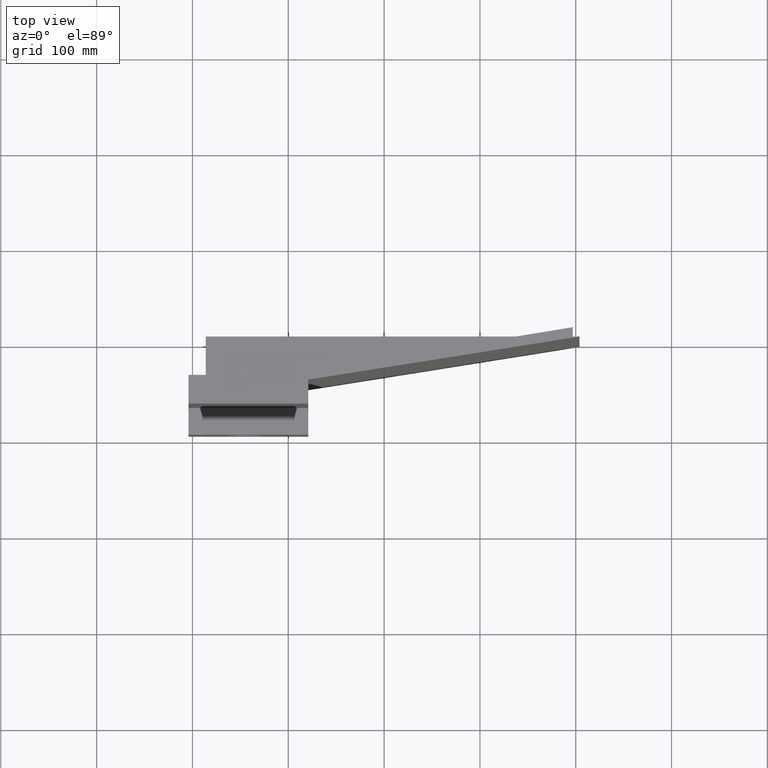
[diagram: clean part render]
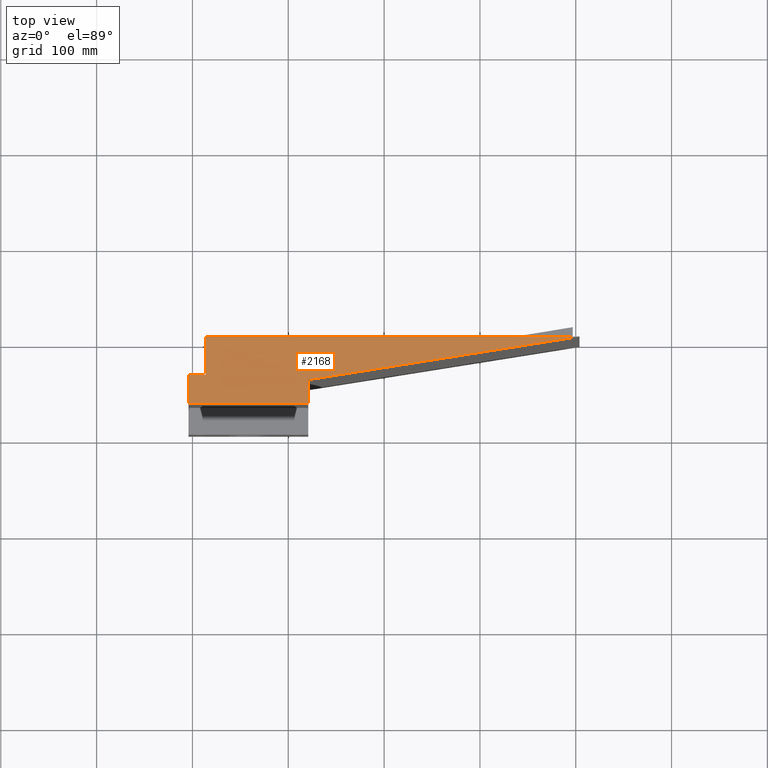
[diagram: same view with one face highlighted and labeled with its STEP entity id]
A machine part, top view. The second image highlights one B-rep face of the part: STEP entity #2168.
In plain terms, the highlighted planar face has unit normal (0, 0, -1).
Its self-contained STEP definition (entity closure, byte-faithful):
#55 = LINE ( 'NONE', #2606, #93 ) ;
#84 = CARTESIAN_POINT ( 'NONE',  ( 20.88361753920343500, 0.0000000000000000000, 318.0000000000000000 ) ) ;
#93 = VECTOR ( 'NONE', #2626, 1000.000000000000000 ) ;
#160 = ORIENTED_EDGE ( 'NONE', *, *, #1872, .T. ) ;
#176 = PLANE ( 'NONE',  #2049 ) ;
#248 = EDGE_CURVE ( 'NONE', #2057, #2836, #2489, .T. ) ;
#331 = VERTEX_POINT ( 'NONE', #1990 ) ;
#349 = EDGE_CURVE ( 'NONE', #2400, #331, #2109, .T. ) ;
#573 = VECTOR ( 'NONE', #2435, 1000.000000000000000 ) ;
#605 = LINE ( 'NONE', #2419, #573 ) ;
#614 = ORIENTED_EDGE ( 'NONE', *, *, #1019, .T. ) ;
#619 = VECTOR ( 'NONE', #2942, 1000.000000000000000 ) ;
#622 = CARTESIAN_POINT ( 'NONE',  ( 20.88361753920343500, -45.00000000000002100, 318.0000000000000000 ) ) ;
#658 = VECTOR ( 'NONE', #2006, 1000.000000000000000 ) ;
#863 = CARTESIAN_POINT ( 'NONE',  ( -104.1163824607965700, -40.00000000000003600, 318.0000000000000000 ) ) ;
#895 = ORIENTED_EDGE ( 'NONE', *, *, #349, .T. ) ;
#898 = CARTESIAN_POINT ( 'NONE',  ( -104.1163824607965700, -40.00000000000003600, 318.0000000000000000 ) ) ;
#1019 = EDGE_CURVE ( 'NONE', #1593, #1308, #1720, .T. ) ;
#1159 = CARTESIAN_POINT ( 'NONE',  ( 20.88361753920343500, -70.00000000000001400, 318.0000000000000000 ) ) ;
#1308 = VERTEX_POINT ( 'NONE', #622 ) ;
#1314 = ORIENTED_EDGE ( 'NONE', *, *, #2559, .T. ) ;
#1402 = DIRECTION ( 'NONE',  ( 0.9875926096460859700, 0.1570376941133352600, -0.0000000000000000000 ) ) ;
#1415 = CARTESIAN_POINT ( 'NONE',  ( 303.8836175392034400, 0.0000000000000000000, 318.0000000000000000 ) ) ;
#1593 = VERTEX_POINT ( 'NONE', #1159 ) ;
#1600 = ORIENTED_EDGE ( 'NONE', *, *, #2449, .T. ) ;
#1720 = LINE ( 'NONE', #2743, #619 ) ;
#1758 = CARTESIAN_POINT ( 'NONE',  ( -73.11638246079655800, -70.00000000000001400, 318.0000000000000000 ) ) ;
#1762 = DIRECTION ( 'NONE',  ( 1.000000000000000000, 4.476705744456276300E-016, -0.0000000000000000000 ) ) ;
#1844 = VECTOR ( 'NONE', #1402, 1000.000000000000100 ) ;
#1872 = EDGE_CURVE ( 'NONE', #2766, #1593, #2254, .T. ) ;
#1888 = LINE ( 'NONE', #1415, #1844 ) ;
#1910 = ORIENTED_EDGE ( 'NONE', *, *, #248, .T. ) ;
#1990 = CARTESIAN_POINT ( 'NONE',  ( -86.11638246079655800, 0.0000000000000000000, 318.0000000000000000 ) ) ;
#2006 = DIRECTION ( 'NONE',  ( -1.000000000000000000, -0.0000000000000000000, -0.0000000000000000000 ) ) ;
#2049 = AXIS2_PLACEMENT_3D ( 'NONE', #84, #2248, #2242 ) ;
#2057 = VERTEX_POINT ( 'NONE', #2061 ) ;
#2061 = CARTESIAN_POINT ( 'NONE',  ( -86.11638246079657200, -40.00000000000003600, 318.0000000000000000 ) ) ;
#2109 = LINE ( 'NONE', #2441, #658 ) ;
#2168 = ADVANCED_FACE ( 'NONE', ( #2178 ), #176, .F. ) ;
#2178 = FACE_OUTER_BOUND ( 'NONE', #2362, .T. ) ;
#2183 = EDGE_CURVE ( 'NONE', #1308, #2400, #1888, .T. ) ;
#2242 = DIRECTION ( 'NONE',  ( -1.000000000000000000, 0.0000000000000000000, -0.0000000000000000000 ) ) ;
#2248 = DIRECTION ( 'NONE',  ( 0.0000000000000000000, 0.0000000000000000000, -1.000000000000000000 ) ) ;
#2254 = LINE ( 'NONE', #1758, #2324 ) ;
#2297 = ORIENTED_EDGE ( 'NONE', *, *, #2183, .T. ) ;
#2313 = CARTESIAN_POINT ( 'NONE',  ( 303.8836175392034400, 0.0000000000000000000, 318.0000000000000000 ) ) ;
#2324 = VECTOR ( 'NONE', #1762, 1000.000000000000000 ) ;
#2362 = EDGE_LOOP ( 'NONE', ( #895, #1600, #1910, #1314, #160, #614, #2297 ) ) ;
#2400 = VERTEX_POINT ( 'NONE', #2313 ) ;
#2419 = CARTESIAN_POINT ( 'NONE',  ( -86.11638246079657200, -40.00000000000003600, 318.0000000000000000 ) ) ;
#2430 = VECTOR ( 'NONE', #2640, 1000.000000000000000 ) ;
#2435 = DIRECTION ( 'NONE',  ( -3.469446951953611200E-016, -1.000000000000000000, -0.0000000000000000000 ) ) ;
#2441 = CARTESIAN_POINT ( 'NONE',  ( 296.8836175392034400, 0.0000000000000000000, 318.0000000000000000 ) ) ;
#2449 = EDGE_CURVE ( 'NONE', #331, #2057, #605, .T. ) ;
#2489 = LINE ( 'NONE', #863, #2430 ) ;
#2559 = EDGE_CURVE ( 'NONE', #2836, #2766, #55, .T. ) ;
#2606 = CARTESIAN_POINT ( 'NONE',  ( -104.1163824607965600, -70.00000000000002800, 318.0000000000000000 ) ) ;
#2626 = DIRECTION ( 'NONE',  ( 4.625929269271485900E-016, -1.000000000000000000, -0.0000000000000000000 ) ) ;
#2640 = DIRECTION ( 'NONE',  ( -1.000000000000000000, -0.0000000000000000000, -0.0000000000000000000 ) ) ;
#2743 = CARTESIAN_POINT ( 'NONE',  ( 20.88361753920343500, -45.00000000000002100, 318.0000000000000000 ) ) ;
#2766 = VERTEX_POINT ( 'NONE', #2935 ) ;
#2836 = VERTEX_POINT ( 'NONE', #898 ) ;
#2935 = CARTESIAN_POINT ( 'NONE',  ( -104.1163824607965600, -70.00000000000002800, 318.0000000000000000 ) ) ;
#2942 = DIRECTION ( 'NONE',  ( -0.0000000000000000000, 1.000000000000000000, -0.0000000000000000000 ) ) ;